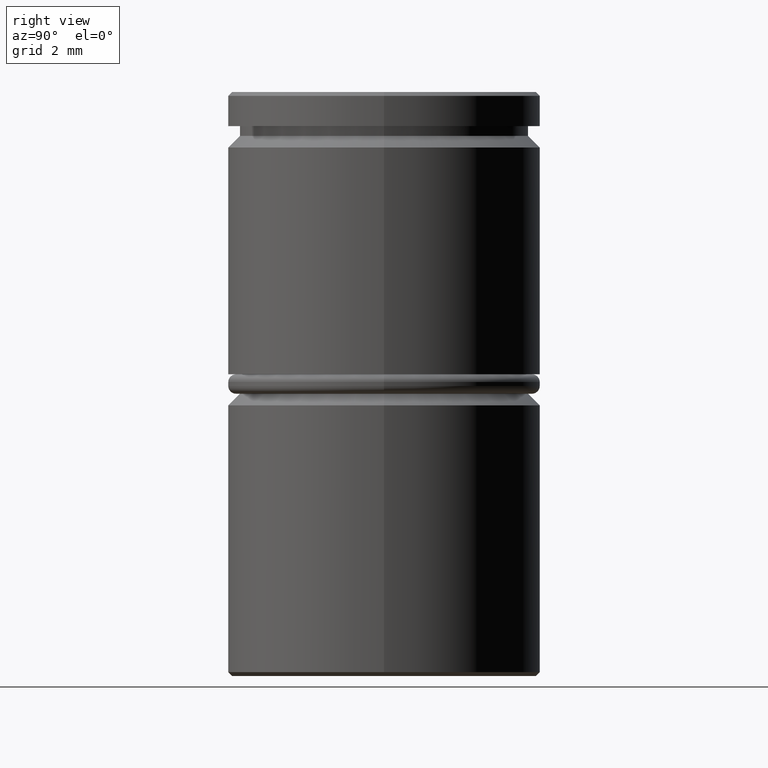
[diagram: clean part render]
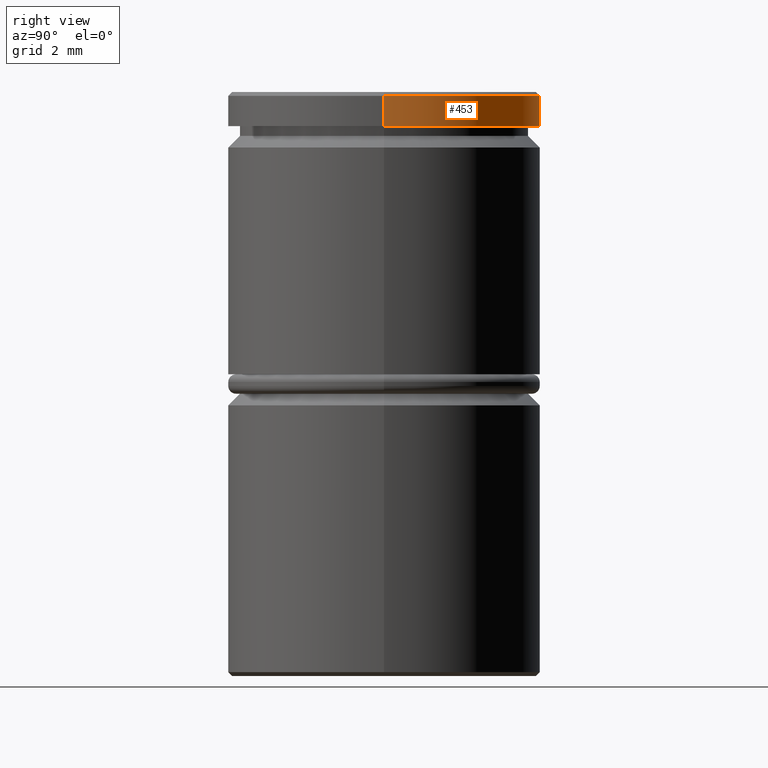
[diagram: same view with one face highlighted and labeled with its STEP entity id]
A machine part, right view. The second image highlights one B-rep face of the part: STEP entity #453.
In plain terms, the highlighted cylindrical surface (partial cylindrical patch) has radius 4 mm, axis along (-0, -0, 1).
Its self-contained STEP definition (entity closure, byte-faithful):
#19 = EDGE_CURVE ( 'NONE', #1130, #556, #626, .T. ) ;
#24 = CARTESIAN_POINT ( 'NONE',  ( 4.000000000000000000, 0.000000000000000000, -0.8749999999999998890 ) ) ;
#31 = DIRECTION ( 'NONE',  ( 1.000000000000000000, 0.000000000000000000, 0.000000000000000000 ) ) ;
#52 = EDGE_CURVE ( 'NONE', #1130, #1117, #437, .T. ) ;
#70 = CARTESIAN_POINT ( 'NONE',  ( -4.000000000000000000, 4.898587196589412829E-16, -0.1000000000000028644 ) ) ;
#124 = CARTESIAN_POINT ( 'NONE',  ( -4.000000000000000000, 4.898587196589412829E-16, 0.000000000000000000 ) ) ;
#224 = LINE ( 'NONE', #124, #291 ) ;
#254 = CARTESIAN_POINT ( 'NONE',  ( 0.000000000000000000, 0.000000000000000000, -0.1000000000000028644 ) ) ;
#291 = VECTOR ( 'NONE', #302, 1000.000000000000000 ) ;
#293 = AXIS2_PLACEMENT_3D ( 'NONE', #614, #435, #700 ) ;
#300 = CARTESIAN_POINT ( 'NONE',  ( -4.000000000000000000, 4.898587196589412829E-16, -0.8749999999999998890 ) ) ;
#302 = DIRECTION ( 'NONE',  ( -0.000000000000000000, -0.000000000000000000, 1.000000000000000000 ) ) ;
#303 = EDGE_CURVE ( 'NONE', #377, #1117, #563, .T. ) ;
#312 = VECTOR ( 'NONE', #1137, 1000.000000000000000 ) ;
#321 = ORIENTED_EDGE ( 'NONE', *, *, #303, .T. ) ;
#377 = VERTEX_POINT ( 'NONE', #70 ) ;
#405 = CARTESIAN_POINT ( 'NONE',  ( 4.000000000000000000, 0.000000000000000000, -0.1000000000000028644 ) ) ;
#435 = DIRECTION ( 'NONE',  ( -0.000000000000000000, -0.000000000000000000, 1.000000000000000000 ) ) ;
#437 = LINE ( 'NONE', #512, #312 ) ;
#453 = ADVANCED_FACE ( 'NONE', ( #574 ), #933, .T. ) ;
#489 = CARTESIAN_POINT ( 'NONE',  ( 0.000000000000000000, 0.000000000000000000, 0.000000000000000000 ) ) ;
#507 = DIRECTION ( 'NONE',  ( 1.000000000000000000, 0.000000000000000000, 0.000000000000000000 ) ) ;
#512 = CARTESIAN_POINT ( 'NONE',  ( 4.000000000000000000, 0.000000000000000000, 0.000000000000000000 ) ) ;
#515 = ORIENTED_EDGE ( 'NONE', *, *, #19, .T. ) ;
#556 = VERTEX_POINT ( 'NONE', #300 ) ;
#563 = CIRCLE ( 'NONE', #769, 4.000000000000000000 ) ;
#572 = EDGE_LOOP ( 'NONE', ( #515, #668, #321, #817 ) ) ;
#574 = FACE_OUTER_BOUND ( 'NONE', #572, .T. ) ;
#614 = CARTESIAN_POINT ( 'NONE',  ( 0.000000000000000000, 0.000000000000000000, -0.8749999999999998890 ) ) ;
#626 = CIRCLE ( 'NONE', #293, 4.000000000000000000 ) ;
#668 = ORIENTED_EDGE ( 'NONE', *, *, #805, .T. ) ;
#700 = DIRECTION ( 'NONE',  ( 1.000000000000000000, 0.000000000000000000, 0.000000000000000000 ) ) ;
#769 = AXIS2_PLACEMENT_3D ( 'NONE', #254, #1054, #507 ) ;
#805 = EDGE_CURVE ( 'NONE', #556, #377, #224, .T. ) ;
#817 = ORIENTED_EDGE ( 'NONE', *, *, #52, .F. ) ;
#843 = DIRECTION ( 'NONE',  ( -0.000000000000000000, -0.000000000000000000, 1.000000000000000000 ) ) ;
#846 = AXIS2_PLACEMENT_3D ( 'NONE', #489, #843, #31 ) ;
#933 = CYLINDRICAL_SURFACE ( 'NONE', #846, 4.000000000000000000 ) ;
#1054 = DIRECTION ( 'NONE',  ( 0.000000000000000000, 0.000000000000000000, -1.000000000000000000 ) ) ;
#1117 = VERTEX_POINT ( 'NONE', #405 ) ;
#1130 = VERTEX_POINT ( 'NONE', #24 ) ;
#1137 = DIRECTION ( 'NONE',  ( -0.000000000000000000, -0.000000000000000000, 1.000000000000000000 ) ) ;